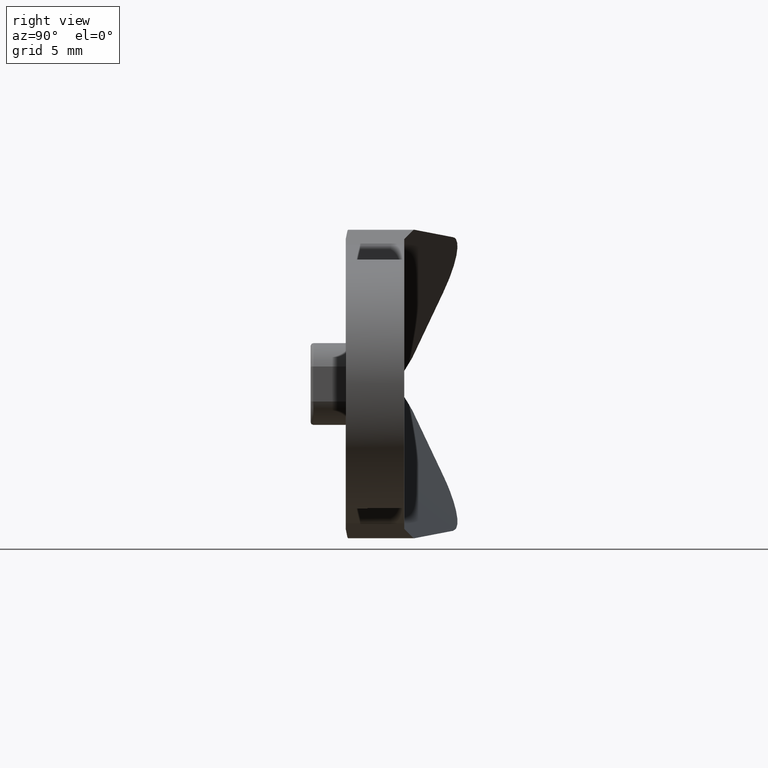
[diagram: clean part render]
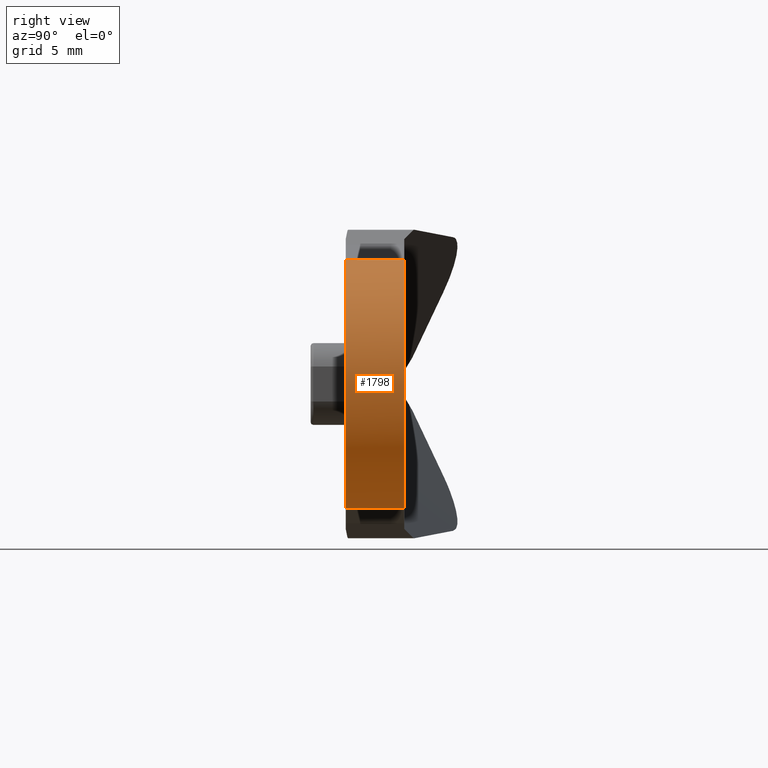
[diagram: same view with one face highlighted and labeled with its STEP entity id]
A machine part, right view. The second image highlights one B-rep face of the part: STEP entity #1798.
In plain terms, the highlighted face is a freeform B-spline surface patch.
Its self-contained STEP definition (entity closure, byte-faithful):
#1663=CARTESIAN_POINT('',(-1.523762737230810,-4.000000189989805,8.362305542373401));
#1664=VERTEX_POINT('',#1663);
#1670=CARTESIAN_POINT('',(-1.523762737230810,0.0,8.362305542373401));
#1671=VERTEX_POINT('',#1670);
#1672=CARTESIAN_POINT('',(-1.523762737230810,-4.000000189989805,8.362305542373401));
#1673=CARTESIAN_POINT('',(-1.523762737230810,0.0,8.362305542373401));
#1674=QUASI_UNIFORM_CURVE('',1,(#1672,#1673),.UNSPECIFIED.,.F.,.U.);
#1675=EDGE_CURVE('',#1664,#1671,#1674,.T.);
#1691=CARTESIAN_POINT('',(-1.523762737230895,-4.000000189989805,-8.362305542373589));
#1692=VERTEX_POINT('',#1691);
#1707=CARTESIAN_POINT('',(-1.523762737230895,0.0,-8.362305542373589));
#1708=VERTEX_POINT('',#1707);
#1714=CARTESIAN_POINT('',(-1.523762737230895,-4.000000189989805,-8.362305542373589));
#1715=CARTESIAN_POINT('',(-1.523762737230895,0.0,-8.362305542373589));
#1716=QUASI_UNIFORM_CURVE('',1,(#1714,#1715),.UNSPECIFIED.,.F.,.U.);
#1717=EDGE_CURVE('',#1692,#1708,#1716,.T.);
#1742=CARTESIAN_POINT('',(-1.742140221714994,-4.100000194739550,-8.319552530711297));
#1743=CARTESIAN_POINT('',(-1.742140221714994,0.102500004868489,-8.319552530711297));
#1744=CARTESIAN_POINT('',(8.623807395392278,-4.100000194739550,-10.490214259607104));
#1745=CARTESIAN_POINT('',(8.623807395392278,0.102500004868489,-10.490214259607104));
#1746=CARTESIAN_POINT('',(8.499414073772009,-4.100000194739550,0.099836195581536));
#1747=CARTESIAN_POINT('',(8.499414073772009,0.102500004868489,0.099836195581536));
#1748=CARTESIAN_POINT('',(8.375020752151741,-4.100000194739550,10.689886650770173));
#1749=CARTESIAN_POINT('',(8.375020752151741,0.102500004868489,10.689886650770173));
#1750=CARTESIAN_POINT('',(-1.937079579939589,-4.100000194739550,8.276335515453862));
#1751=CARTESIAN_POINT('',(-1.937079579939589,0.102500004868489,8.276335515453862));
#1759=(BOUNDED_SURFACE()B_SPLINE_SURFACE(1,2,((#1742,#1744,#1746,#1748,#1750),(#1743,#1745,#1747,#1749,#1751)),.UNSPECIFIED.,.F.,.F.,.U.)B_SPLINE_SURFACE_WITH_KNOTS((2,2),(3,2,3),(0.0,4.202500199608039),(0.0,16.308315943668319,32.616631887336638),.UNSPECIFIED.)GEOMETRIC_REPRESENTATION_ITEM()RATIONAL_B_SPLINE_SURFACE(((1.0,0.625923472184059,1.0,0.625923472184059,1.0),(1.0,0.625923472184059,1.0,0.625923472184059,1.0)))REPRESENTATION_ITEM('')SURFACE());
#1760=CARTESIAN_POINT('',(-1.523762737230895,0.0,-8.362305542373589));
#1761=CARTESIAN_POINT('',(3.999032446587316,0.0,-9.368658331543504));
#1762=CARTESIAN_POINT('',(7.092747502208293,0.0,-4.684329165771763));
#1763=CARTESIAN_POINT('',(10.186462557829270,0.0,-2.428613E-014));
#1764=CARTESIAN_POINT('',(7.092747502208316,0.0,4.684329165771730));
#1765=CARTESIAN_POINT('',(3.999032446587364,0.0,9.368658331543479));
#1766=CARTESIAN_POINT('',(-1.523762737230806,0.0,8.362305542373399));
#1774=(BOUNDED_CURVE()B_SPLINE_CURVE(2,(#1760,#1761,#1762,#1763,#1764,#1765,#1766),.UNSPECIFIED.,.F.,.U.)B_SPLINE_CURVE_WITH_KNOTS((3,2,2,3),(0.0,0.333333333333333,0.666666666666667,1.0),.UNSPECIFIED.)CURVE()GEOMETRIC_REPRESENTATION_ITEM()RATIONAL_B_SPLINE_CURVE((1.0,0.834440842978928,1.0,0.834440842978928,1.0,0.834440842978928,1.0))REPRESENTATION_ITEM(''));
#1775=EDGE_CURVE('',#1708,#1671,#1774,.T.);
#1776=ORIENTED_EDGE('',*,*,#1775,.T.);
#1777=ORIENTED_EDGE('',*,*,#1675,.F.);
#1778=CARTESIAN_POINT('',(-1.523762737230810,-4.000000189989805,8.362305542373399));
#1779=CARTESIAN_POINT('',(3.999032446587367,-4.000000189989805,9.368658331543482));
#1780=CARTESIAN_POINT('',(7.092747502208319,-4.000000189989805,4.684329165771725));
#1781=CARTESIAN_POINT('',(10.186462557829268,-4.000000189989805,-2.949030E-014));
#1782=CARTESIAN_POINT('',(7.092747502208290,-4.000000189989805,-4.684329165771767));
#1783=CARTESIAN_POINT('',(3.999032446587313,-4.000000189989805,-9.368658331543507));
#1784=CARTESIAN_POINT('',(-1.523762737230895,-4.000000189989805,-8.362305542373589));
#1792=(BOUNDED_CURVE()B_SPLINE_CURVE(2,(#1778,#1779,#1780,#1781,#1782,#1783,#1784),.UNSPECIFIED.,.F.,.U.)B_SPLINE_CURVE_WITH_KNOTS((3,2,2,3),(0.0,0.333333333333333,0.666666666666667,1.0),.UNSPECIFIED.)CURVE()GEOMETRIC_REPRESENTATION_ITEM()RATIONAL_B_SPLINE_CURVE((1.0,0.834440842978928,1.0,0.834440842978928,1.0,0.834440842978928,1.0))REPRESENTATION_ITEM(''));
#1793=EDGE_CURVE('',#1664,#1692,#1792,.T.);
#1794=ORIENTED_EDGE('',*,*,#1793,.T.);
#1795=ORIENTED_EDGE('',*,*,#1717,.T.);
#1796=EDGE_LOOP('',(#1776,#1777,#1794,#1795));
#1797=FACE_OUTER_BOUND('',#1796,.T.);
#1798=ADVANCED_FACE('',(#1797),#1759,.T.);